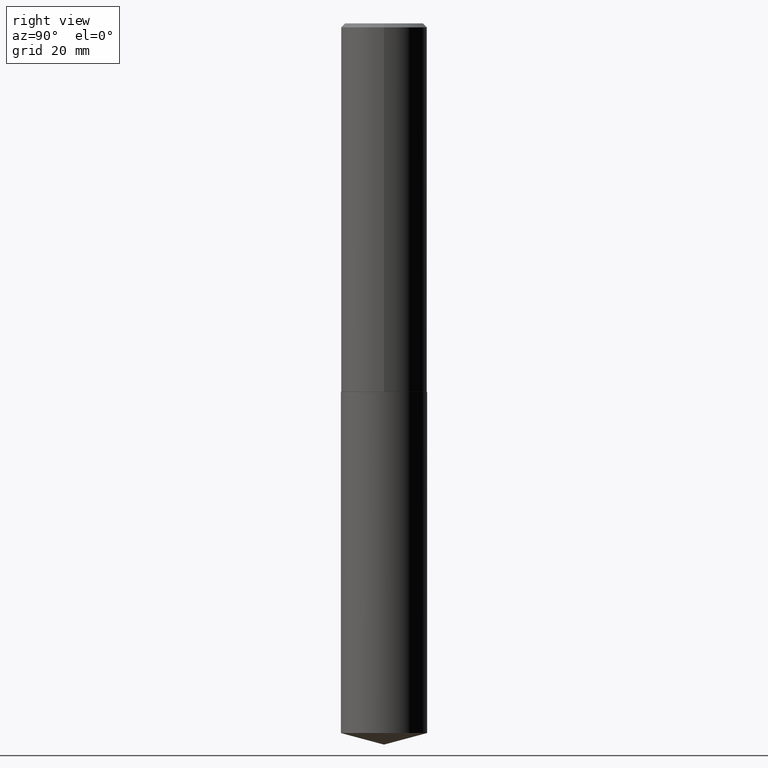
[diagram: clean part render]
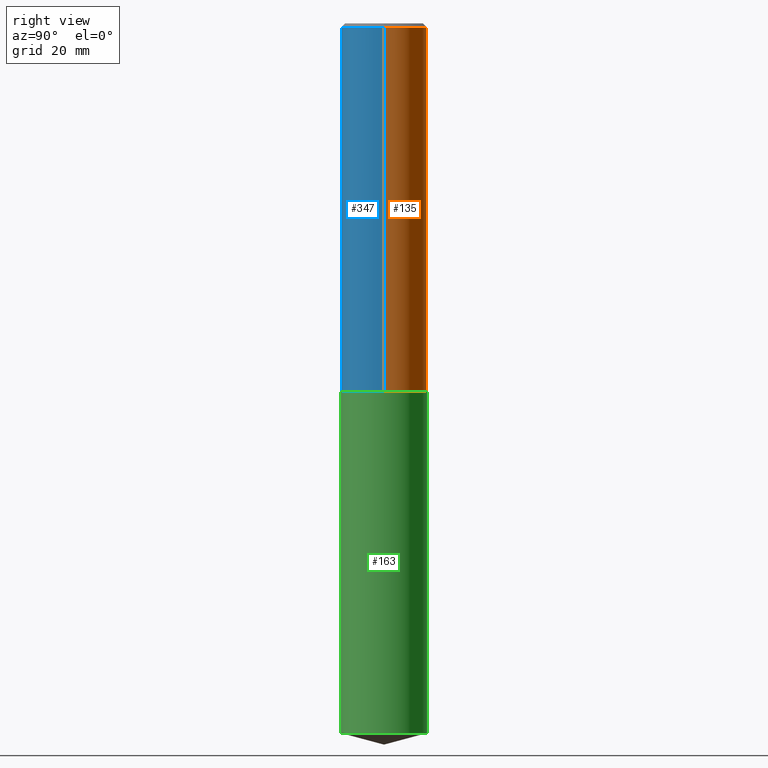
[diagram: same view with three faces highlighted in distinct colors, each labeled with its STEP entity id]
A machine part, right view with three faces highlighted in distinct colors.
Their STEP definitions:

[orange] entity #135 — the highlighted cylindrical surface (partial cylindrical patch) has radius 8.7313 mm, axis along (-0, 0, 1).
#3 = EDGE_LOOP ( 'NONE', ( #117, #319, #236, #143 ) ) ;
#19 = LINE ( 'NONE', #151, #317 ) ;
#21 = EDGE_CURVE ( 'NONE', #345, #51, #268, .T. ) ;
#25 = CARTESIAN_POINT ( 'NONE',  ( 0.3437500000000001110, -2.400393420454654971E-15, 1.676185766679853419E-29 ) ) ;
#36 = CARTESIAN_POINT ( 'NONE',  ( 7.642090019328592152E-31, -1.091087918388488541E-16, -0.03125000000000015959 ) ) ;
#44 = DIRECTION ( 'NONE',  ( 1.000000000000000000, -6.982962677686266711E-15, 4.876176775795935793E-29 ) ) ;
#47 = VERTEX_POINT ( 'NONE', #285 ) ;
#51 = VERTEX_POINT ( 'NONE', #86 ) ;
#86 = CARTESIAN_POINT ( 'NONE',  ( -0.3437500000000000000, -2.739304087835236119E-15, -0.03125000000000015959 ) ) ;
#91 = AXIS2_PLACEMENT_3D ( 'NONE', #376, #263, #372 ) ;
#107 = DIRECTION ( 'NONE',  ( 1.000000000000000000, -6.982962677686265922E-15, 0.000000000000000000 ) ) ;
#113 = CARTESIAN_POINT ( 'NONE',  ( 0.000000000000000000, 0.000000000000000000, 0.000000000000000000 ) ) ;
#117 = ORIENTED_EDGE ( 'NONE', *, *, #225, .T. ) ;
#135 = ADVANCED_FACE ( 'NONE', ( #341 ), #176, .T. ) ;
#143 = ORIENTED_EDGE ( 'NONE', *, *, #355, .F. ) ;
#151 = CARTESIAN_POINT ( 'NONE',  ( -0.3437500000000001110, 2.442490654175345178E-15, -1.690883937275124476E-29 ) ) ;
#170 = EDGE_CURVE ( 'NONE', #47, #51, #19, .T. ) ;
#173 = DIRECTION ( 'NONE',  ( -2.445468806185136597E-29, 3.491481338843145583E-15, 1.000000000000000000 ) ) ;
#176 = CYLINDRICAL_SURFACE ( 'NONE', #280, 0.3437500000000001110 ) ;
#181 = CIRCLE ( 'NONE', #91, 0.3437500000000002776 ) ;
#211 = DIRECTION ( 'NONE',  ( -2.445468806185136877E-29, 3.491481338843145188E-15, 1.000000000000000000 ) ) ;
#216 = DIRECTION ( 'NONE',  ( -2.445468806185136877E-29, 3.491481338843145188E-15, 1.000000000000000000 ) ) ;
#223 = VECTOR ( 'NONE', #216, 39.37007874015748143 ) ;
#225 = EDGE_CURVE ( 'NONE', #374, #47, #181, .T. ) ;
#236 = ORIENTED_EDGE ( 'NONE', *, *, #21, .F. ) ;
#251 = DIRECTION ( 'NONE',  ( -2.445468806185136597E-29, 3.491481338843145583E-15, 1.000000000000000000 ) ) ;
#263 = DIRECTION ( 'NONE',  ( -2.445468806185136597E-29, 3.491481338843145583E-15, 1.000000000000000000 ) ) ;
#265 = CARTESIAN_POINT ( 'NONE',  ( 0.3437500000000000000, -2.509502212293502494E-15, -0.03125000000000015959 ) ) ;
#268 = CIRCLE ( 'NONE', #299, 0.3437500000000000000 ) ;
#271 = CARTESIAN_POINT ( 'NONE',  ( 0.3437500000000002776, -1.265487411263697241E-14, -2.936999999999999389 ) ) ;
#280 = AXIS2_PLACEMENT_3D ( 'NONE', #113, #173, #44 ) ;
#285 = CARTESIAN_POINT ( 'NONE',  ( -0.3437500000000002776, -7.811990038006968315E-15, -2.936999999999999389 ) ) ;
#299 = AXIS2_PLACEMENT_3D ( 'NONE', #36, #251, #107 ) ;
#317 = VECTOR ( 'NONE', #211, 39.37007874015748143 ) ;
#319 = ORIENTED_EDGE ( 'NONE', *, *, #170, .T. ) ;
#341 = FACE_OUTER_BOUND ( 'NONE', #3, .T. ) ;
#345 = VERTEX_POINT ( 'NONE', #265 ) ;
#355 = EDGE_CURVE ( 'NONE', #374, #345, #380, .T. ) ;
#372 = DIRECTION ( 'NONE',  ( 1.000000000000000000, -6.982962677686269077E-15, 0.000000000000000000 ) ) ;
#374 = VERTEX_POINT ( 'NONE', #271 ) ;
#376 = CARTESIAN_POINT ( 'NONE',  ( 7.182341883765743709E-29, -1.025448069218231586E-14, -2.936999999999999389 ) ) ;
#380 = LINE ( 'NONE', #25, #223 ) ;

[blue] entity #347 — the highlighted cylindrical surface (partial cylindrical patch) has radius 8.7313 mm, axis along (-0, 0, 1).
#19 = LINE ( 'NONE', #151, #317 ) ;
#25 = CARTESIAN_POINT ( 'NONE',  ( 0.3437500000000001110, -2.400393420454654971E-15, 1.676185766679853419E-29 ) ) ;
#47 = VERTEX_POINT ( 'NONE', #285 ) ;
#49 = ORIENTED_EDGE ( 'NONE', *, *, #170, .F. ) ;
#51 = VERTEX_POINT ( 'NONE', #86 ) ;
#60 = AXIS2_PLACEMENT_3D ( 'NONE', #191, #246, #88 ) ;
#86 = CARTESIAN_POINT ( 'NONE',  ( -0.3437500000000000000, -2.739304087835236119E-15, -0.03125000000000015959 ) ) ;
#88 = DIRECTION ( 'NONE',  ( 1.000000000000000000, -6.982962677686266711E-15, 4.876176775795935793E-29 ) ) ;
#99 = EDGE_CURVE ( 'NONE', #47, #374, #159, .T. ) ;
#105 = EDGE_CURVE ( 'NONE', #51, #345, #147, .T. ) ;
#122 = CARTESIAN_POINT ( 'NONE',  ( 7.182341883765743709E-29, -1.025448069218231586E-14, -2.936999999999999389 ) ) ;
#139 = AXIS2_PLACEMENT_3D ( 'NONE', #122, #198, #201 ) ;
#147 = CIRCLE ( 'NONE', #364, 0.3437500000000000000 ) ;
#151 = CARTESIAN_POINT ( 'NONE',  ( -0.3437500000000001110, 2.442490654175345178E-15, -1.690883937275124476E-29 ) ) ;
#156 = CYLINDRICAL_SURFACE ( 'NONE', #60, 0.3437500000000001110 ) ;
#159 = CIRCLE ( 'NONE', #139, 0.3437500000000002776 ) ;
#170 = EDGE_CURVE ( 'NONE', #47, #51, #19, .T. ) ;
#186 = FACE_OUTER_BOUND ( 'NONE', #194, .T. ) ;
#191 = CARTESIAN_POINT ( 'NONE',  ( 0.000000000000000000, 0.000000000000000000, 0.000000000000000000 ) ) ;
#194 = EDGE_LOOP ( 'NONE', ( #49, #328, #284, #313 ) ) ;
#198 = DIRECTION ( 'NONE',  ( -2.445468806185136597E-29, 3.491481338843145583E-15, 1.000000000000000000 ) ) ;
#201 = DIRECTION ( 'NONE',  ( 1.000000000000000000, -6.982962677686269077E-15, 0.000000000000000000 ) ) ;
#211 = DIRECTION ( 'NONE',  ( -2.445468806185136877E-29, 3.491481338843145188E-15, 1.000000000000000000 ) ) ;
#216 = DIRECTION ( 'NONE',  ( -2.445468806185136877E-29, 3.491481338843145188E-15, 1.000000000000000000 ) ) ;
#223 = VECTOR ( 'NONE', #216, 39.37007874015748143 ) ;
#235 = DIRECTION ( 'NONE',  ( 1.000000000000000000, -6.982962677686265922E-15, 0.000000000000000000 ) ) ;
#246 = DIRECTION ( 'NONE',  ( -2.445468806185136597E-29, 3.491481338843145583E-15, 1.000000000000000000 ) ) ;
#265 = CARTESIAN_POINT ( 'NONE',  ( 0.3437500000000000000, -2.509502212293502494E-15, -0.03125000000000015959 ) ) ;
#271 = CARTESIAN_POINT ( 'NONE',  ( 0.3437500000000002776, -1.265487411263697241E-14, -2.936999999999999389 ) ) ;
#284 = ORIENTED_EDGE ( 'NONE', *, *, #355, .T. ) ;
#285 = CARTESIAN_POINT ( 'NONE',  ( -0.3437500000000002776, -7.811990038006968315E-15, -2.936999999999999389 ) ) ;
#311 = DIRECTION ( 'NONE',  ( -2.445468806185136597E-29, 3.491481338843145583E-15, 1.000000000000000000 ) ) ;
#313 = ORIENTED_EDGE ( 'NONE', *, *, #105, .F. ) ;
#317 = VECTOR ( 'NONE', #211, 39.37007874015748143 ) ;
#328 = ORIENTED_EDGE ( 'NONE', *, *, #99, .T. ) ;
#336 = CARTESIAN_POINT ( 'NONE',  ( 7.642090019328592152E-31, -1.091087918388488541E-16, -0.03125000000000015959 ) ) ;
#345 = VERTEX_POINT ( 'NONE', #265 ) ;
#347 = ADVANCED_FACE ( 'NONE', ( #186 ), #156, .T. ) ;
#355 = EDGE_CURVE ( 'NONE', #374, #345, #380, .T. ) ;
#364 = AXIS2_PLACEMENT_3D ( 'NONE', #336, #311, #235 ) ;
#374 = VERTEX_POINT ( 'NONE', #271 ) ;
#380 = LINE ( 'NONE', #25, #223 ) ;

[green] entity #163 — the highlighted cylindrical surface (partial cylindrical patch) has radius 8.7312 mm, axis along (-0, 0, 1).
#11 = CARTESIAN_POINT ( 'NONE',  ( -2.400393420454582001E-15, -0.3437500000000102141, -2.937499999999998224 ) ) ;
#12 = EDGE_LOOP ( 'NONE', ( #83, #203, #77, #316 ) ) ;
#17 = VECTOR ( 'NONE', #377, 39.37007874015748143 ) ;
#23 = DIRECTION ( 'NONE',  ( -6.982962677686265922E-15, -1.000000000000000000, 3.178877665354778874E-15 ) ) ;
#27 = AXIS2_PLACEMENT_3D ( 'NONE', #384, #267, #295 ) ;
#31 = DIRECTION ( 'NONE',  ( -2.445019328993523323E-29, 3.492125015764188805E-15, 1.000000000000000000 ) ) ;
#40 = VERTEX_POINT ( 'NONE', #388 ) ;
#50 = DIRECTION ( 'NONE',  ( -6.982962677686265922E-15, -1.000000000000000000, 3.178877665354778874E-15 ) ) ;
#58 = EDGE_CURVE ( 'NONE', #123, #286, #185, .T. ) ;
#77 = ORIENTED_EDGE ( 'NONE', *, *, #175, .F. ) ;
#80 = AXIS2_PLACEMENT_3D ( 'NONE', #318, #31, #23 ) ;
#82 = CYLINDRICAL_SURFACE ( 'NONE', #166, 0.3437500000000000000 ) ;
#83 = ORIENTED_EDGE ( 'NONE', *, *, #335, .T. ) ;
#112 = DIRECTION ( 'NONE',  ( -2.445019328993523042E-29, 3.492125015764188805E-15, 1.000000000000000000 ) ) ;
#123 = VERTEX_POINT ( 'NONE', #207 ) ;
#124 = CARTESIAN_POINT ( 'NONE',  ( 2.442490654175483228E-15, 0.3437499999999897304, -2.937500000000000444 ) ) ;
#127 = VERTEX_POINT ( 'NONE', #11 ) ;
#130 = EDGE_CURVE ( 'NONE', #40, #127, #144, .T. ) ;
#142 = CARTESIAN_POINT ( 'NONE',  ( -2.400393420454582001E-15, -0.3437500000000102141, -2.937499999999998224 ) ) ;
#144 = LINE ( 'NONE', #142, #17 ) ;
#163 = ADVANCED_FACE ( 'NONE', ( #369 ), #82, .T. ) ;
#166 = AXIS2_PLACEMENT_3D ( 'NONE', #204, #312, #50 ) ;
#175 = EDGE_CURVE ( 'NONE', #127, #286, #233, .T. ) ;
#182 = CARTESIAN_POINT ( 'NONE',  ( 2.442490654175415781E-15, 0.3437499999999897304, -2.937500000000000444 ) ) ;
#185 = LINE ( 'NONE', #182, #339 ) ;
#196 = CIRCLE ( 'NONE', #27, 0.3437500000000000000 ) ;
#203 = ORIENTED_EDGE ( 'NONE', *, *, #58, .T. ) ;
#204 = CARTESIAN_POINT ( 'NONE',  ( 7.183564618168836511E-29, -1.025622643285173815E-14, -2.937499999999999556 ) ) ;
#207 = CARTESIAN_POINT ( 'NONE',  ( 2.442490654175483228E-15, 0.3437499999999802935, -5.657892465101804547 ) ) ;
#233 = CIRCLE ( 'NONE', #80, 0.3437500000000000000 ) ;
#267 = DIRECTION ( 'NONE',  ( -2.445019328993523323E-29, 3.492125015764188805E-15, 1.000000000000000000 ) ) ;
#286 = VERTEX_POINT ( 'NONE', #124 ) ;
#295 = DIRECTION ( 'NONE',  ( -6.982962677686265922E-15, -1.000000000000000000, 3.178877665354778874E-15 ) ) ;
#312 = DIRECTION ( 'NONE',  ( -2.445019328993523323E-29, 3.492125015764188805E-15, 1.000000000000000000 ) ) ;
#316 = ORIENTED_EDGE ( 'NONE', *, *, #130, .F. ) ;
#318 = CARTESIAN_POINT ( 'NONE',  ( 7.183564618168836511E-29, -1.025622643285173815E-14, -2.937499999999999556 ) ) ;
#335 = EDGE_CURVE ( 'NONE', #40, #123, #196, .T. ) ;
#339 = VECTOR ( 'NONE', #112, 39.37007874015748143 ) ;
#369 = FACE_OUTER_BOUND ( 'NONE', #12, .T. ) ;
#377 = DIRECTION ( 'NONE',  ( -2.445019328993523042E-29, 3.492125015764188805E-15, 1.000000000000000000 ) ) ;
#384 = CARTESIAN_POINT ( 'NONE',  ( 1.383497677779108676E-28, -1.975617701293015879E-14, -5.657892465101803658 ) ) ;
#388 = CARTESIAN_POINT ( 'NONE',  ( -2.400393420454516131E-15, -0.3437500000000198730, -5.657892465101801882 ) ) ;